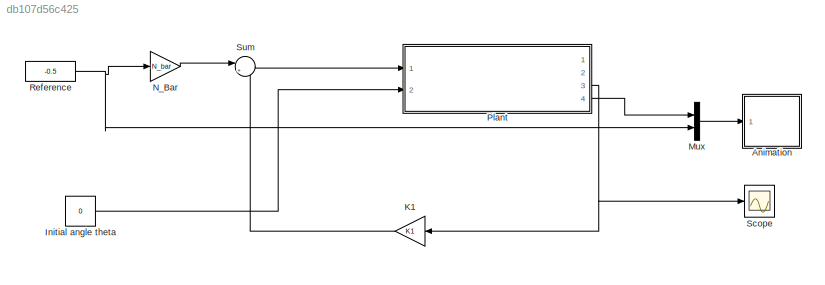
MODEL slx_db107d56c425
KIND model
CONFIG AbsTol = auto
CONFIG EnableMultiTasking = on
CONFIG FixedStep = auto
CONFIG MaxStep = 1e-3
CONFIG MinStep = auto
CONFIG RelTol = 1e-3
CONFIG SampleTimeConstraint = Unconstrained
CONFIG Solver = ode45
CONFIG SolverName = ode45
CONFIG StartTime = 0.0
CONFIG StopTime = 12
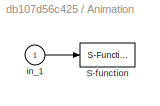
BLOCK [SubSystem] Animation
  Ports = [1]
  RequestExecContextInheritance = off
  Variant = off
BLOCK [S-Function] Animation/S-function
  DeleteFcn = pendan([],[],[],'DeleteBlock');
  EnableBusSupport = off
  FunctionName = invpend_anim
  Parameters = RefBlock,L,r,Ts
  Ports = [1]
  SFcnIsStateOwnerBlock = off
  SFunctionDeploymentMode = off
BLOCK [Inport] Animation/in_1
  IconDisplay = Port number
BLOCK [Constant] Initial angle theta 
  Value = 0
BLOCK [Gain] K1
  Gain = K1
  Multiplication = Matrix(K*u)
  OutDataTypeStr = Inherit: Inherit via internal rule
  ParamDataTypeStr = Inherit: Inherit via internal rule
  SaturateOnIntegerOverflow = off
BLOCK [Mux] Mux
  DisplayOption = bar
  Inputs = 2
  Ports = [2, 1]
BLOCK [Gain] N_Bar 
  Gain = N_bar
  OutDataTypeStr = Inherit: Inherit via internal rule
  ParamDataTypeStr = Inherit: Inherit via internal rule
  SaturateOnIntegerOverflow = off
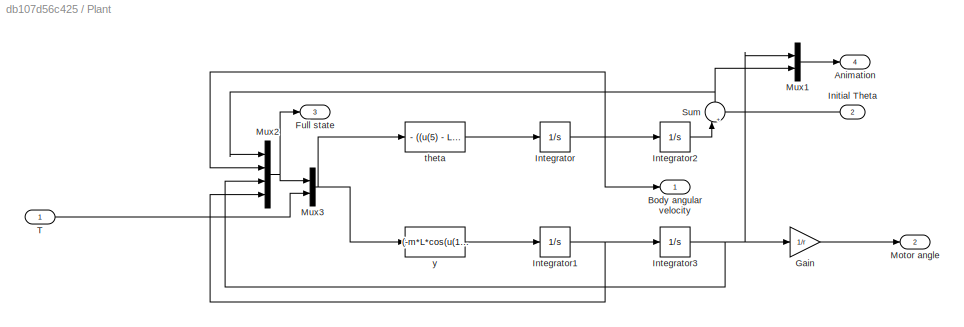
BLOCK [SubSystem] Plant
  Ports = [2, 4]
  RequestExecContextInheritance = off
  Variant = off
BLOCK [Outport] Plant/Animation
  IconDisplay = Port number
  Port = 4
BLOCK [Outport] Plant/Body angular velocity
  IconDisplay = Port number
BLOCK [Outport] Plant/Full state
  IconDisplay = Port number
  Port = 3
BLOCK [Gain] Plant/Gain
  Gain = 1/r
  OutDataTypeStr = Inherit: Inherit via internal rule
  ParamDataTypeStr = Inherit: Inherit via internal rule
  SaturateOnIntegerOverflow = off
BLOCK [Inport] Plant/Initial Theta
  IconDisplay = Port number
  Port = 2
BLOCK [Integrator] Plant/Integrator
  Ports = [1, 1]
BLOCK [Integrator] Plant/Integrator1
  Ports = [1, 1]
BLOCK [Integrator] Plant/Integrator2
  Ports = [1, 1]
BLOCK [Integrator] Plant/Integrator3
  Ports = [1, 1]
BLOCK [Outport] Plant/Motor angle
  IconDisplay = Port number
  Port = 2
BLOCK [Mux] Plant/Mux1
  DisplayOption = bar
  Inputs = 2
  Ports = [2, 1]
BLOCK [Mux] Plant/Mux2
  DisplayOption = bar
  Ports = [4, 1]
BLOCK [Mux] Plant/Mux3
  DisplayOption = bar
  Inputs = 2
  Ports = [2, 1]
BLOCK [Sum] Plant/Sum
  IconShape = round
  InputSameDT = off
  Inputs = |++
  OutDataTypeStr = Inherit: Inherit via internal rule
  Ports = [2, 1]
  SaturateOnIntegerOverflow = off
BLOCK [Inport] Plant/T
  IconDisplay = Port number
BLOCK [Fcn] Plant/theta
  Expr = - ((u(5) - L*g*m*sin(u(1)))*(J + m*r^2 + mw*r^2))/(L^2*m*(J + m*r^2 + mw*r^2 - m*r^2*cos(u(1))^2)) - (r^2*cos(u(1))*(u(5)/r + L*m*u(2)^2*sin(u(1))))/(L*(J + m*r^2 + mw*r^2 - m*r^2*cos(u(1))^2))
BLOCK [Fcn] Plant/y
  Expr = (-m*L*cos(u(1))*(m*g*L*sin(u(1)) - u(5)) + m*L^2*(m*L*u(2)^2*sin(u(1))+u(5)/r))/(L^2*(m^2+m*mw+(m*J)/r^2- m^2*(cos(u(1)))^2))
BLOCK [Constant] Reference
  Value = -0.5
BLOCK [Scope] Scope
  NumInputPorts = 1
  Ports = [1]
  ScopeSpecificationString = Simulink.scopes.TimeScopeBlockCfg('CurrentConfiguration', extmgr.ConfigurationSet(extmgr.Configuration('Core','General UI',true),extmgr.Configuration('Core','Source UI',true),extmgr.Configuration('Sources','WiredSimulink',true),extmgr.Configuration('Visuals','Time Domain',true,'SerializedDisplays',{struct('MinYLimReal','-0.0753','MaxYLimReal','0.01945','YLabelReal','','MinYLimMag','0.00000','MaxYL...<+1361ch>
BLOCK [Sum] Sum
  IconShape = round
  InputSameDT = off
  Inputs = |+-
  OutDataTypeStr = Inherit: Inherit via internal rule
  Ports = [2, 1]
  SaturateOnIntegerOverflow = off
LINE Animation/in_1:1 -> Animation/S-function:1
LINE Initial angle theta :1 -> Plant:2
LINE K1:1 -> Sum:2
LINE Mux:1 -> Animation:1
LINE N_Bar :1 -> Sum:1
LINE Plant/Gain:1 -> Plant/Motor angle:1
LINE Plant/Initial Theta:1 -> Plant/Sum:2
NET Plant/Integrator1:1 -> Plant/Integrator3:1, Plant/Mux2:4
LINE Plant/Integrator2:1 -> Plant/Sum:1
NET Plant/Integrator3:1 -> Plant/Gain:1, Plant/Mux1:1, Plant/Mux2:3
NET Plant/Integrator:1 -> Plant/Body angular velocity:1, Plant/Integrator2:1, Plant/Mux2:2
LINE Plant/Mux1:1 -> Plant/Animation:1
NET Plant/Mux2:1 -> Plant/Full state:1, Plant/Mux3:1
NET Plant/Mux3:1 -> Plant/theta:1, Plant/y:1
NET Plant/Sum:1 -> Plant/Mux1:2, Plant/Mux2:1
LINE Plant/T:1 -> Plant/Mux3:2
LINE Plant/theta:1 -> Plant/Integrator:1
LINE Plant/y:1 -> Plant/Integrator1:1
NET Plant:3 -> K1:1, Scope:1
LINE Plant:4 -> Mux:1
NET Reference:1 -> Mux:2, N_Bar :1
LINE Sum:1 -> Plant:1
note: NET lines group one-source signal fan-out (src -> all destinations, sorted); 1:1 wires keep LINE
